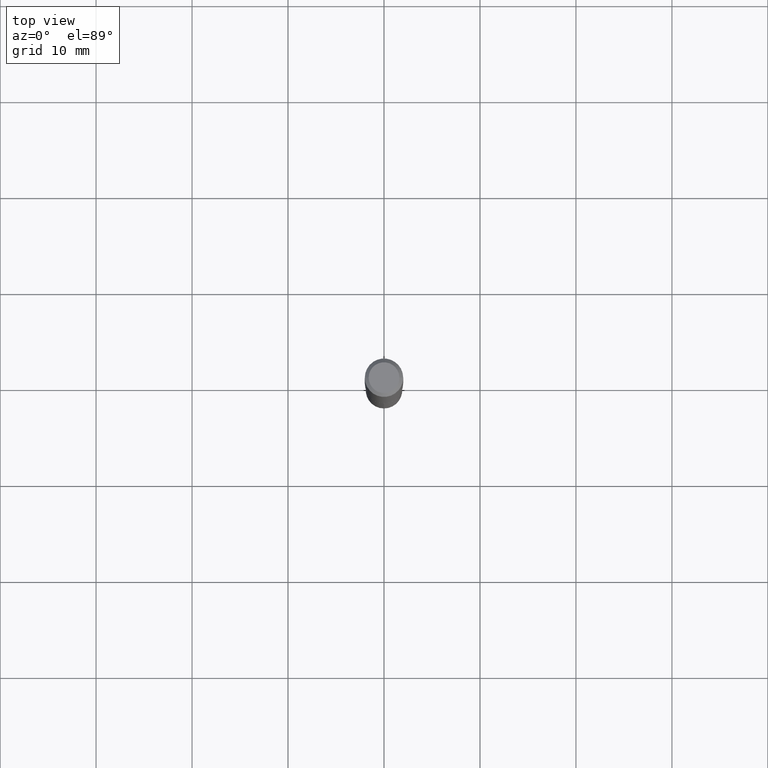
[diagram: clean part render]
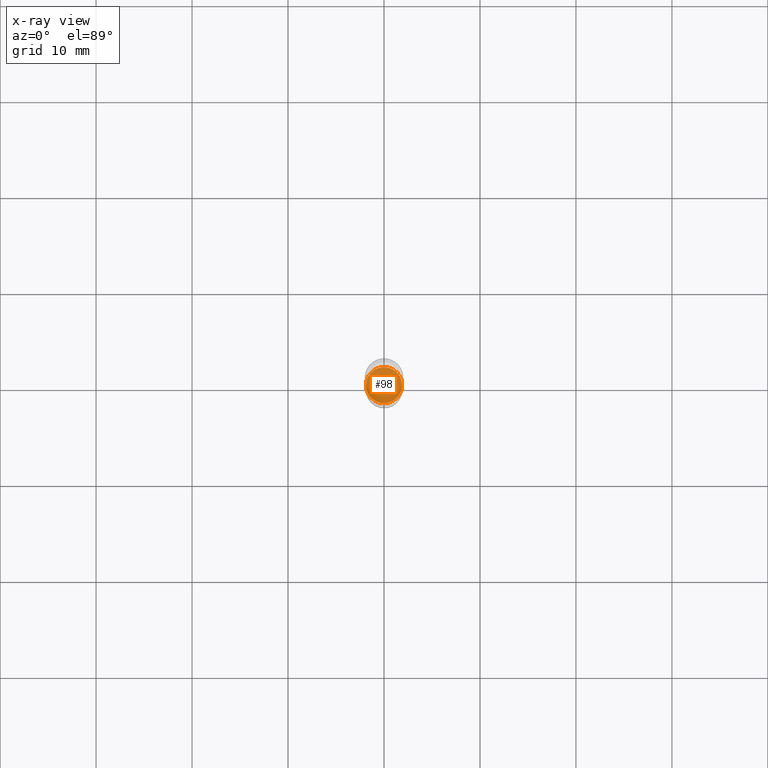
[diagram: x-ray — body ghosted, one internal face saturated and labeled with its STEP entity id]
A machine part, top view, then the same camera in x-ray: the body is ghosted and one INTERNAL B-rep face — a face not visible from any outside direction — is saturated and labeled: STEP entity #98.
In plain terms, the highlighted planar face has unit normal (-0, 0, 1).
Its self-contained STEP definition (entity closure, byte-faithful):
#3 = EDGE_CURVE ( 'NONE', #382, #377, #412, .T. ) ;
#32 = CIRCLE ( 'NONE', #357, 0.07430000000000000493 ) ;
#40 = CARTESIAN_POINT ( 'NONE',  ( 4.390350147744175110E-29, -6.268256447625098416E-15, -1.795299999999999896 ) ) ;
#44 = PLANE ( 'NONE',  #275 ) ;
#46 = DIRECTION ( 'NONE',  ( 1.000000000000000000, -6.982962677686268288E-15, 0.000000000000000000 ) ) ;
#51 = DIRECTION ( 'NONE',  ( -2.445468806185136597E-29, 3.491481338843145583E-15, 1.000000000000000000 ) ) ;
#98 = ADVANCED_FACE ( 'NONE', ( #481 ), #44, .F. ) ;
#115 = DIRECTION ( 'NONE',  ( -2.438088387897960049E-29, 3.491481338843145188E-15, 1.000000000000000000 ) ) ;
#122 = DIRECTION ( 'NONE',  ( -2.445468806185136597E-29, 3.491481338843145583E-15, 1.000000000000000000 ) ) ;
#188 = ORIENTED_EDGE ( 'NONE', *, *, #3, .F. ) ;
#221 = AXIS2_PLACEMENT_3D ( 'NONE', #431, #122, #346 ) ;
#227 = CARTESIAN_POINT ( 'NONE',  ( 4.390350147744175110E-29, -6.268256447625098416E-15, -1.795299999999999896 ) ) ;
#251 = CARTESIAN_POINT ( 'NONE',  ( 0.07430000000000000493, -6.787090574577188210E-15, -1.795299999999999896 ) ) ;
#260 = DIRECTION ( 'NONE',  ( 1.000000000000000000, -6.982962677686265922E-15, 4.876176775795935793E-29 ) ) ;
#263 = EDGE_CURVE ( 'NONE', #377, #382, #32, .T. ) ;
#275 = AXIS2_PLACEMENT_3D ( 'NONE', #40, #115, #260 ) ;
#346 = DIRECTION ( 'NONE',  ( 1.000000000000000000, -6.982962677686268288E-15, 0.000000000000000000 ) ) ;
#357 = AXIS2_PLACEMENT_3D ( 'NONE', #227, #51, #46 ) ;
#377 = VERTEX_POINT ( 'NONE', #251 ) ;
#382 = VERTEX_POINT ( 'NONE', #450 ) ;
#389 = EDGE_LOOP ( 'NONE', ( #426, #188 ) ) ;
#412 = CIRCLE ( 'NONE', #221, 0.07430000000000000493 ) ;
#426 = ORIENTED_EDGE ( 'NONE', *, *, #263, .F. ) ;
#431 = CARTESIAN_POINT ( 'NONE',  ( 4.390350147744175110E-29, -6.268256447625098416E-15, -1.795299999999999896 ) ) ;
#450 = CARTESIAN_POINT ( 'NONE',  ( -0.07430000000000000493, -5.737673967781233334E-15, -1.795299999999999896 ) ) ;
#481 = FACE_OUTER_BOUND ( 'NONE', #389, .T. ) ;